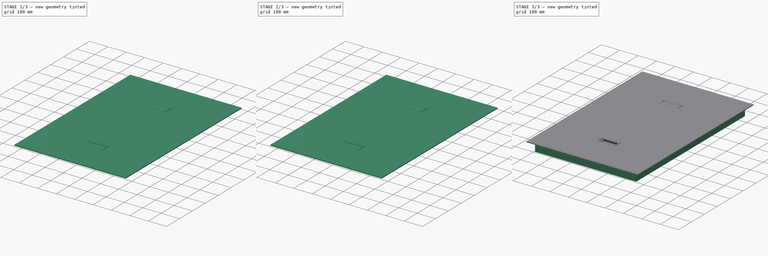
[diagram: build sequence overview — one tinted view per stage of 3, left to right]
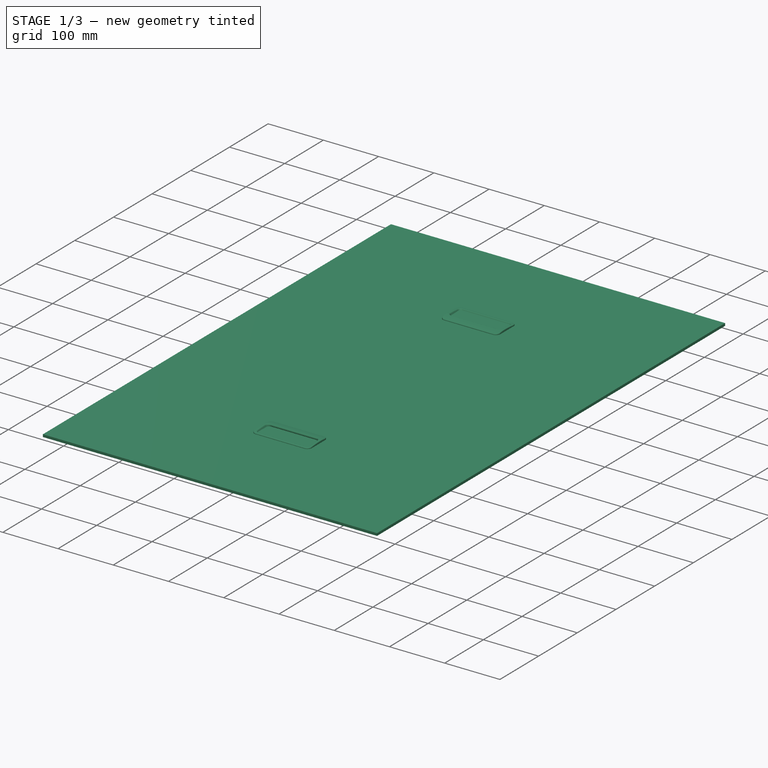
[diagram: stage 1 of 3 — iso view after this stage's code; geometry added in this stage tinted green]
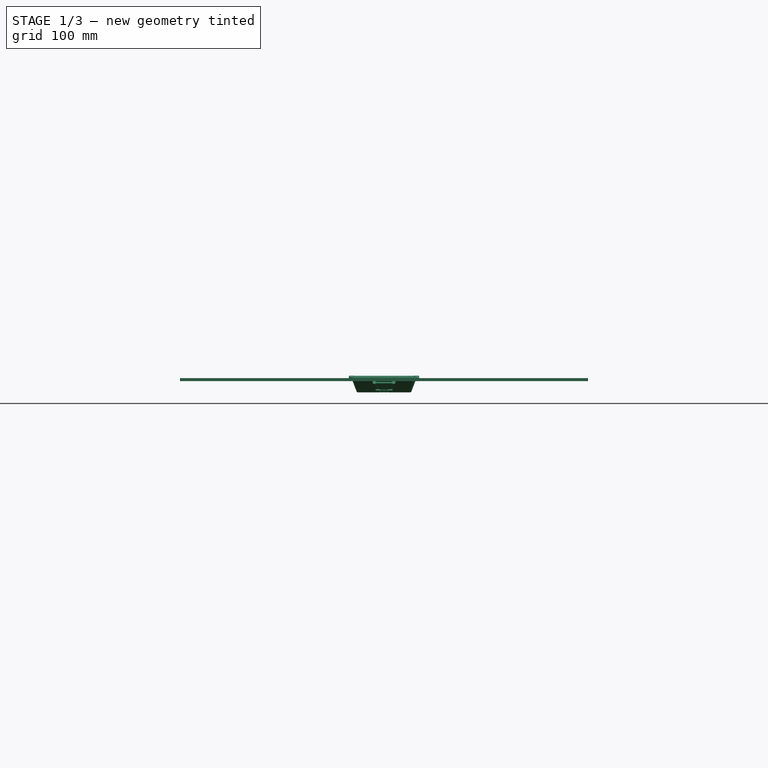
[diagram: stage 1 of 3 — front view after this stage's code; geometry added in this stage tinted green]
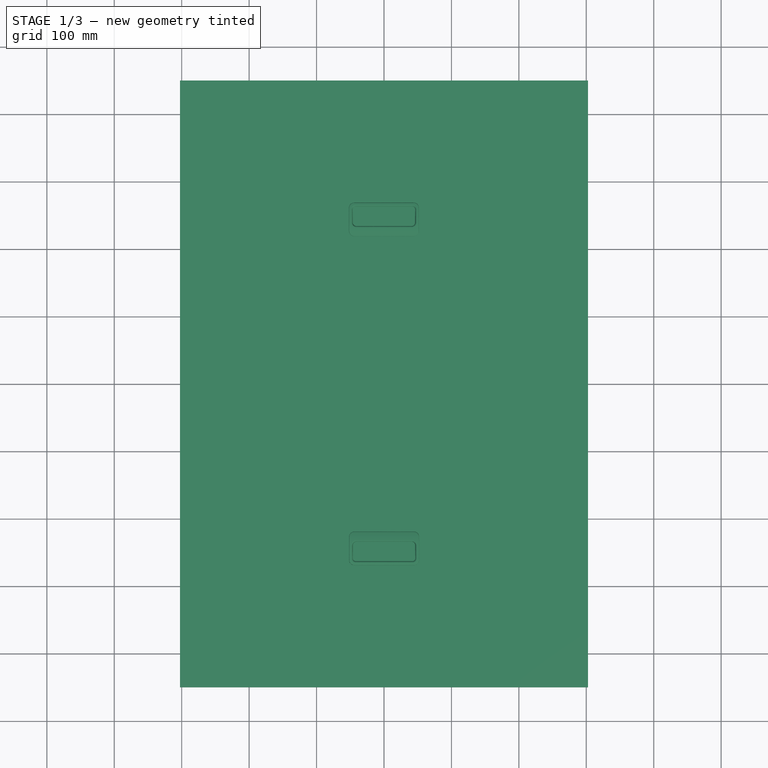
[diagram: stage 1 of 3 — top view after this stage's code; geometry added in this stage tinted green]
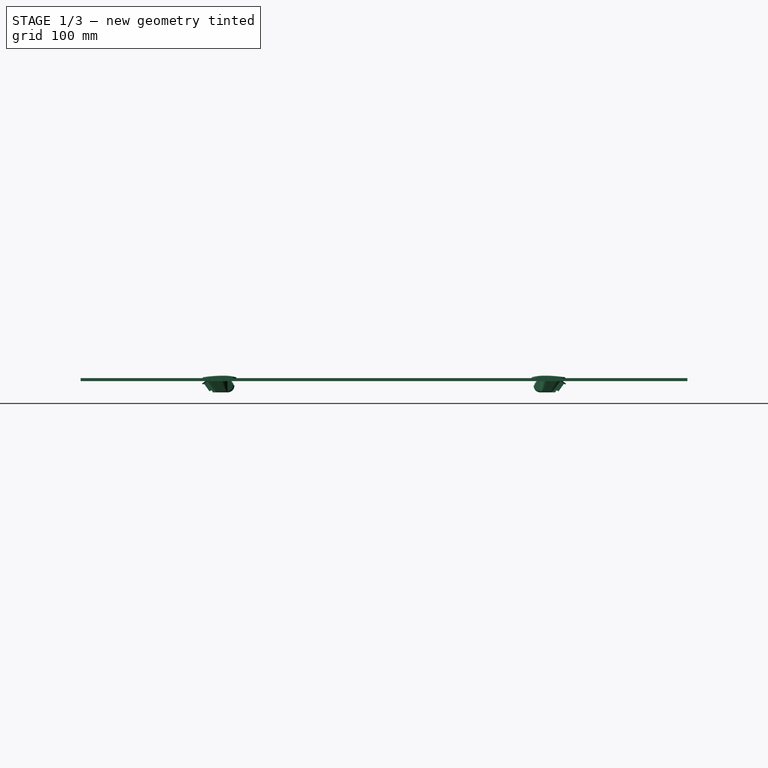
[diagram: stage 1 of 3 — right view after this stage's code; geometry added in this stage tinted green]
FCSTD DOCUMENT  (FreeCAD 1.0R39109 (Git))
Label: inspection cover
License: All rights reserved
LicenseURL: https://en.wikipedia.org/wiki/All_rights_reserved
objects: Sketcher::SketchObject×3, Part::FeaturePython×2, App::Part×2, Part::Extrusion×1, Part::Sweep×1, PartDesign::FeatureBase×1, PartDesign::Pocket×1, PartDesign::Body×1, Part::Feature×1
note: 16 computed .brp shape members not serialized (recipe doc carries the construction recipe); baked Part::Feature solids carry a one-line shape summary decoded from their .brp

FEATURE [Sketcher::SketchObject] Sketch
  ArcFitTolerance = 1e-06
  AttachmentSupport = -> [XY_Plane]
  FullyConstrained = true
  MakeInternals = false
  MapMode = 5
  sketch-geometry (5):
    g0: LineSegment StartX=-302.5 StartY=-450 StartZ=0 EndX=302.5 EndY=-450 EndZ=0
    g1: LineSegment StartX=302.5 StartY=-450 StartZ=0 EndX=302.5 EndY=450 EndZ=0
    g2: LineSegment StartX=302.5 StartY=450 StartZ=0 EndX=-302.5 EndY=450 EndZ=0
    g3: LineSegment StartX=-302.5 StartY=450 StartZ=0 EndX=-302.5 EndY=-450 EndZ=0
    g4: GeomPoint [constr] X=0 Y=0 Z=0
  constraints (12):
    c: Coincident(g0,g1)
    c: Coincident(g1,g2)
    c: Coincident(g2,g3)
    c: Coincident(g3,g0)
    c: Horizontal(g0)
    c: Horizontal(g2)
    c: Vertical(g1)
    c: Vertical(g3)
    c: Symmetric(g2,g0,g4)
    c: Coincident(g4,g-1)
    c: DistanceY(g3,g3) = 900
    c: DistanceX(g2,g2) = 605
FEATURE [Sketcher::SketchObject] Sketch001
  ArcFitTolerance = 1e-06
  AttachmentSupport = -> [XY_Plane]
  ExternalGeometry = -> [Sketch]
  FullyConstrained = true
  MakeInternals = false
  MapMode = 5
  sketch-geometry (5):
    g0: LineSegment StartX=-272.5 StartY=-420 StartZ=0 EndX=272.5 EndY=-420 EndZ=0
    g1: LineSegment StartX=272.5 StartY=-420 StartZ=0 EndX=272.5 EndY=420 EndZ=0
    g2: LineSegment StartX=272.5 StartY=420 StartZ=0 EndX=-272.5 EndY=420 EndZ=0
    g3: LineSegment StartX=-272.5 StartY=420 StartZ=0 EndX=-272.5 EndY=-420 EndZ=0
    g4: GeomPoint [constr] X=0 Y=0 Z=0
  constraints (12):
    c: Coincident(g0,g1)
    c: Coincident(g1,g2)
    c: Coincident(g2,g3)
    c: Coincident(g3,g0)
    c: Horizontal(g0)
    c: Horizontal(g2)
    c: Vertical(g1)
    c: Vertical(g3)
    c: Symmetric(g2,g0,g4)
    c: Coincident(g4,g-1)
    c: DistanceX(g1,g-3) = 30
    c: DistanceY(g1,g-3) = 30
FEATURE [Part::FeaturePython] AngleSteel  # WARN: FeaturePython — macro-defined, semantics opaque (R4)
  A = 50
  B = 50
  L = 5500
  Placement = pos=(275,0,3.74e-14) rot=(0,1,0;3.14159rad)
  Solid = false
  g0 = 7.85
  mass = 0
  size = 6
  standard = SS_Equal
  t = 4
  type = 00_Angle
FEATURE [Part::Extrusion] Extrude
  Base = -> Sketch
  Dir = (0,0,1)
  DirMode = 2
  FaceMakerClass = Part::FaceMakerBullseye
  FaceMakerMode = 3
  LengthFwd = 4.5
  LengthRev = 0
  Solid = true
  Symmetric = false
FEATURE [PartDesign::Body] Body
  AllowCompound = false
  BaseFeature = -> Extrude
  Group = -> [BaseFeature,Sketch002,Pocket]
  Origin = -> Origin
  Tip = -> Pocket
FEATURE [Part::Feature] Part__Feature  label="AP-268-2\X\96{\X\91\X\CC__\X\C3\X\DE\X\CC\X\AB\X\D9\X\\\\C005"
  Placement = pos=(1044.74,-585.443,742.289) rot=(0,0,1;0rad)
  shape: bbox 104.7 x 52.9 x 35.45 mm, 341 faces (baked)
FEATURE [App::Part] AP_268_2_black_v004  label="AP-268-2-black v004"
  Group = -> [Part__Feature]
  Origin = -> Origin002
  Placement = pos=(-154,-42.5,-734) rot=(0,0,1;0rad)
FEATURE [Part::FeaturePython] Array  # Draft array (typed FeaturePython)
  AlwaysSyncPlacement = false
  Angle = 360
  ArrayType = 1
  Axis = (0,0,1)
  Base = -> AP_268_2_black_v004
  Center = (0,0,0)
  Count = 2
  ExpandArray = false
  Fuse = false
  IntervalAxis = (0,0,0)
  IntervalX = (50,0,0)
  IntervalY = (0,50,0)
  IntervalZ = (0,0,50)
  NumberCircles = 3
  NumberPolar = 2
  NumberX = 2
  NumberY = 2
  NumberZ = 1
  PlacementList = 2 placements: [(-154,-42.5,-734),(154,42.5,-734)]
  RadialDistance = 50
  ScaleList = (2) [(1,1,1),(1,1,1)]
  Symmetry = 1
  TangentialDistance = 25
FEATURE [App::Part] Part  label="inspectionCover"
  Group = -> [Sketch,Sketch001,Sweep,AngleSteel,Extrude,Body,AP_268_2_black_v004,Array]
  Origin = -> Origin001
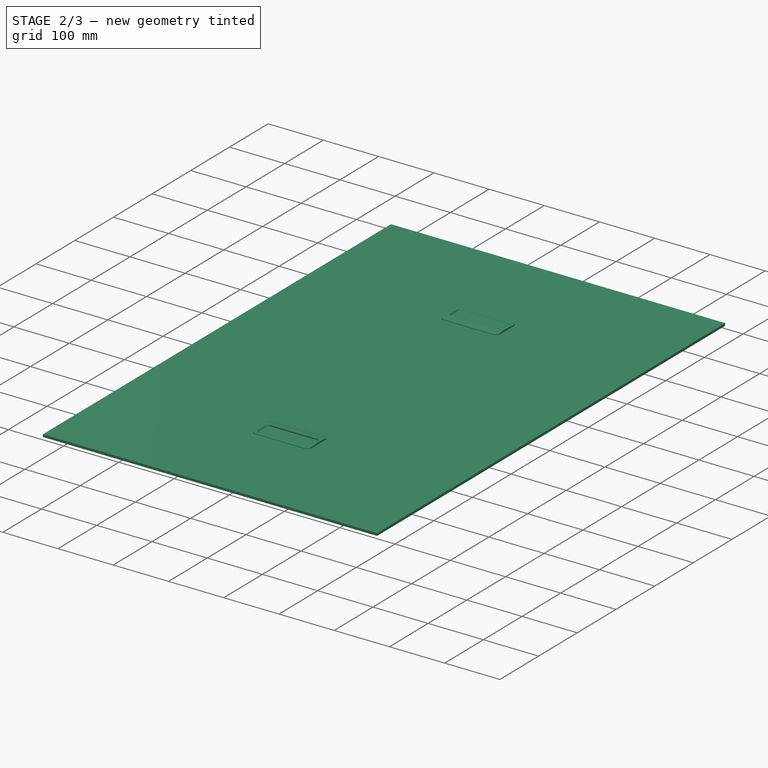
[diagram: stage 2 of 3 — iso view after this stage's code; geometry added in this stage tinted green]
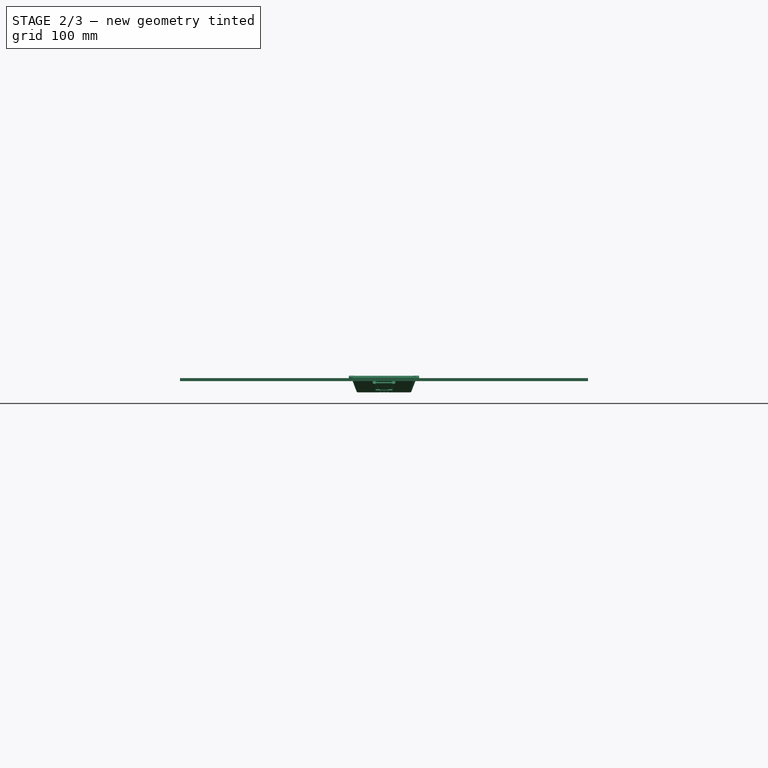
[diagram: stage 2 of 3 — front view after this stage's code; geometry added in this stage tinted green]
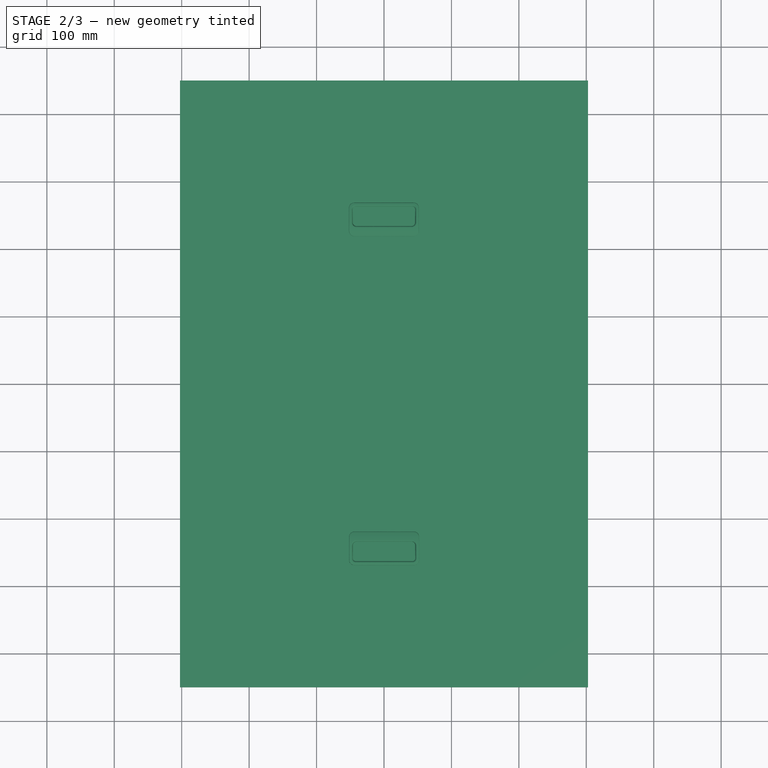
[diagram: stage 2 of 3 — top view after this stage's code; geometry added in this stage tinted green]
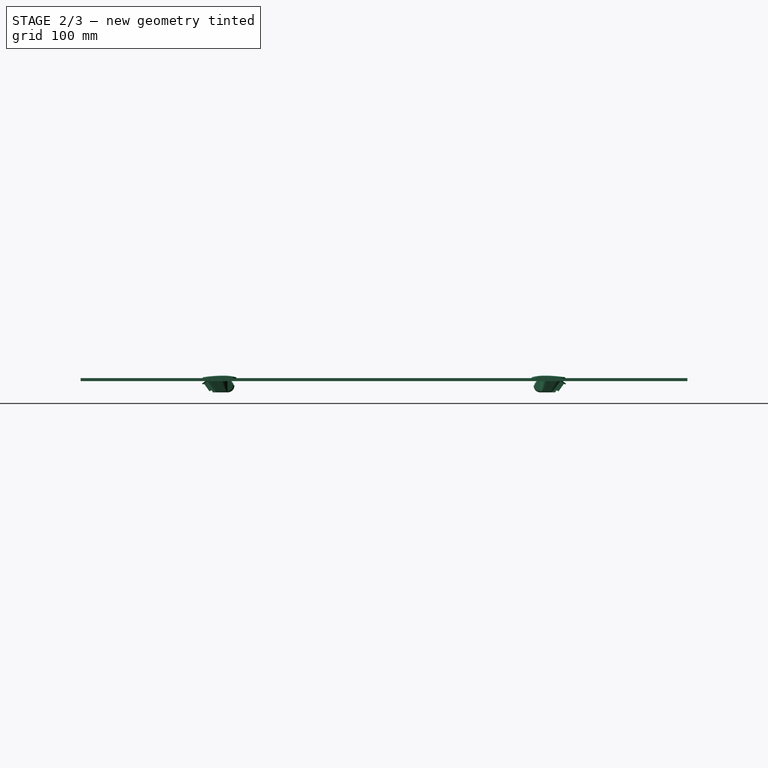
[diagram: stage 2 of 3 — right view after this stage's code; geometry added in this stage tinted green]
FEATURE [PartDesign::FeatureBase] BaseFeature
  BaseFeature = -> Extrude
  Suppressed = false
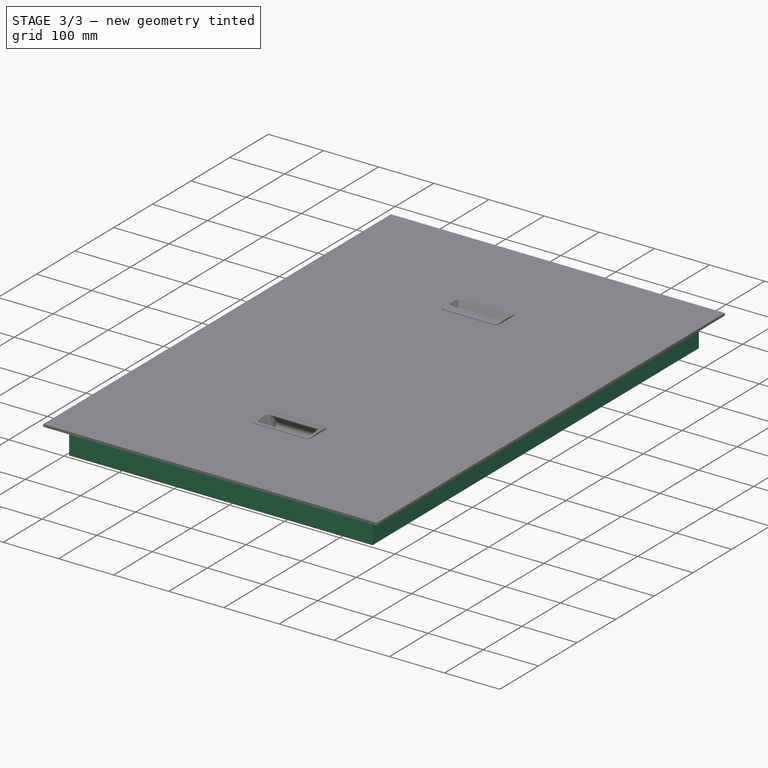
[diagram: stage 3 of 3 — iso view after this stage's code; geometry added in this stage tinted green]
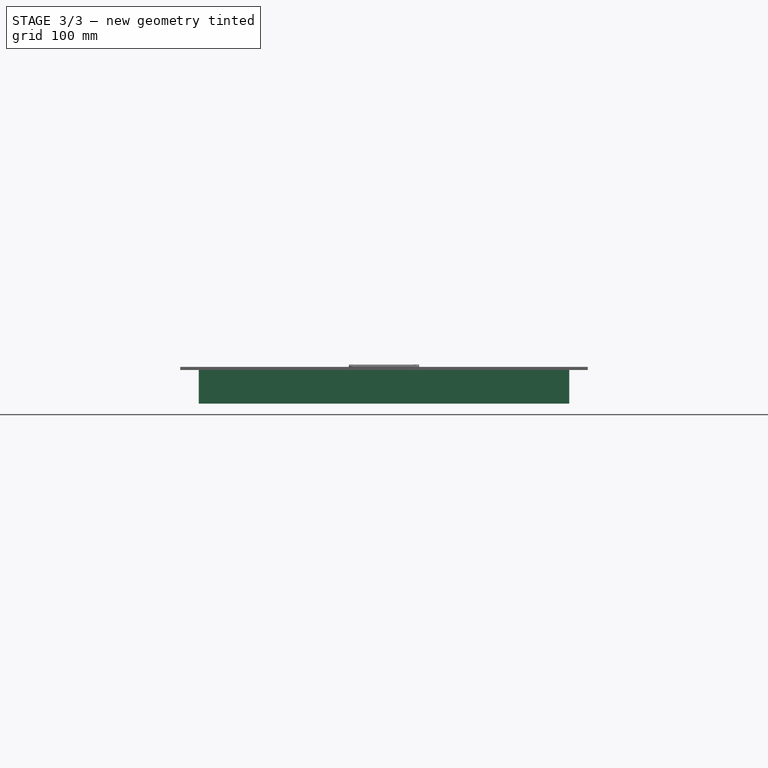
[diagram: stage 3 of 3 — front view after this stage's code; geometry added in this stage tinted green]
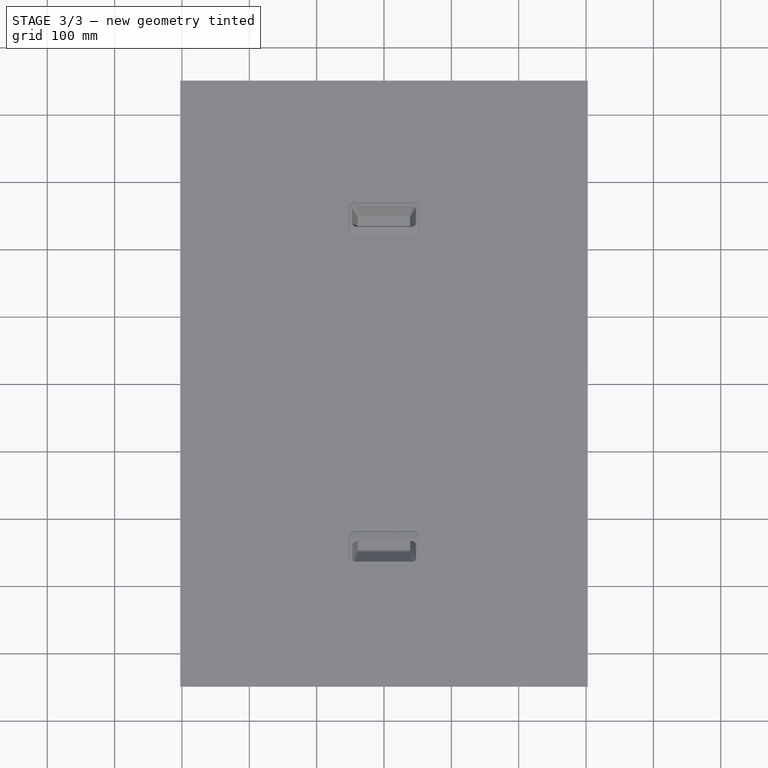
[diagram: stage 3 of 3 — top view after this stage's code; geometry added in this stage tinted green]
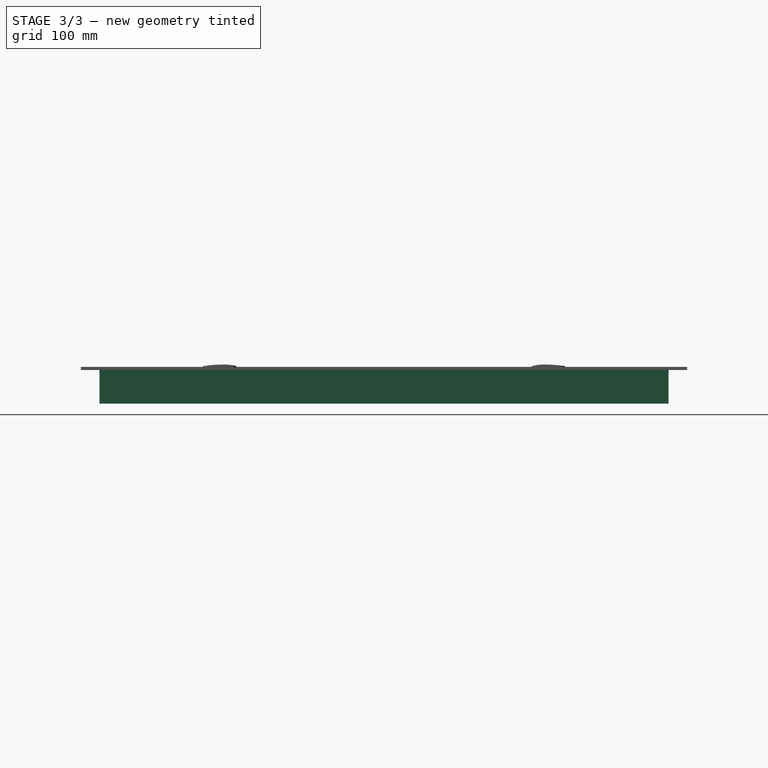
[diagram: stage 3 of 3 — right view after this stage's code; geometry added in this stage tinted green]
FEATURE [Part::Sweep] Sweep
  Frenet = true
  Sections = -> [AngleSteel]
  Solid = true
  Spine = -> Sketch001 [Edge2,Edge3,Edge4,Edge1]
  Transition = 1
FEATURE [Sketcher::SketchObject] Sketch002
  ArcFitTolerance = 1e-06
  AttachmentSupport = -> [BaseFeature]
  FullyConstrained = true
  MakeInternals = false
  MapMode = 5
  Placement = pos=(0,0,4.5) rot=(0,0,1;0rad)
  sketch-geometry (8):
    g0: LineSegment StartX=-48.25 StartY=225 StartZ=0 EndX=48.25 EndY=225 EndZ=0
    g1: LineSegment StartX=48.25 StartY=225 StartZ=0 EndX=48.25 EndY=265 EndZ=0
    g2: LineSegment StartX=48.25 StartY=265 StartZ=0 EndX=-48.25 EndY=265 EndZ=0
    g3: LineSegment StartX=-48.25 StartY=265 StartZ=0 EndX=-48.25 EndY=225 EndZ=0
    g4: LineSegment StartX=-48.25 StartY=-265 StartZ=0 EndX=48.25 EndY=-265 EndZ=0
    g5: LineSegment StartX=48.25 StartY=-265 StartZ=0 EndX=48.25 EndY=-225 EndZ=0
    g6: LineSegment StartX=48.25 StartY=-225 StartZ=0 EndX=-48.25 EndY=-225 EndZ=0
    g7: LineSegment StartX=-48.25 StartY=-225 StartZ=0 EndX=-48.25 EndY=-265 EndZ=0
  constraints (23):
    c: Coincident(g0,g1)
    c: Coincident(g1,g2)
    c: Coincident(g2,g3)
    c: Coincident(g3,g0)
    c: Horizontal(g2)
    c: Vertical(g1)
    c: Vertical(g3)
    c: Coincident(g4,g5)
    c: Coincident(g5,g6)
    c: Coincident(g6,g7)
    c: Coincident(g7,g4)
    c: Horizontal(g4)
    c: Horizontal(g6)
    c: Vertical(g5)
    c: Vertical(g7)
    c: DistanceX(g2,g2) = 96.5
    c: DistanceY(g1,g1) = 40
    c: Vertical(g0,g6)
    c: Vertical(g0,g5)
    c: Symmetric(g0,g0,g-2)
    c: DistanceY(g-1,g0) = 225
    c: DistanceY(g5,g5) = 40
    c: DistanceY(g5,g-1) = 225
FEATURE [PartDesign::Pocket] Pocket
  BaseFeature = -> BaseFeature
  Direction = (0,0,-1)
  Length = 5
  Length2 = 5
  Profile = -> Sketch002
  ReferenceAxis = -> Sketch002 [N_Axis]
  Suppressed = false
  Type = 0
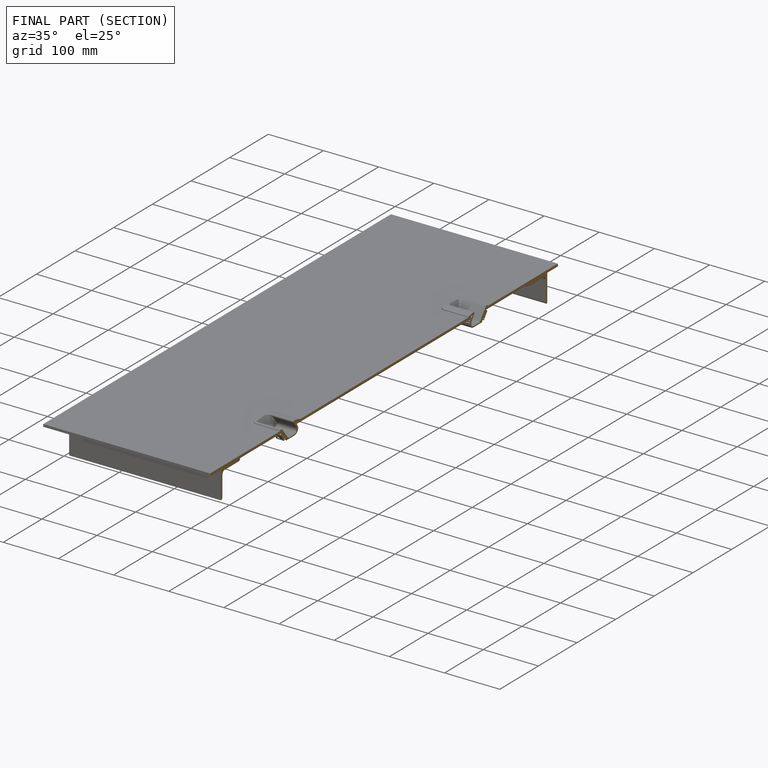
[diagram: finished part — half-section view (interior)]
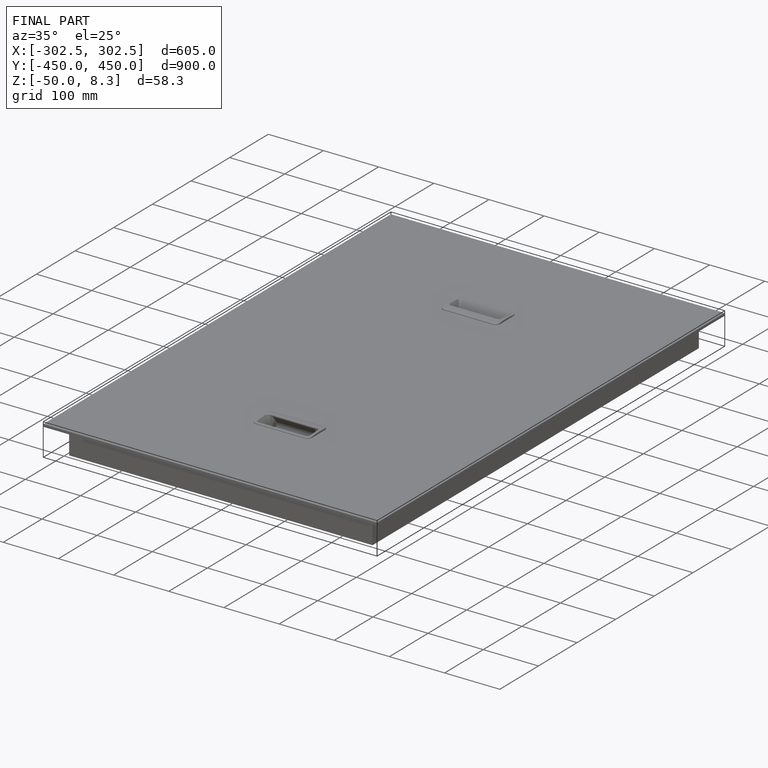
[diagram: finished part — iso view with bounding-box wireframe]
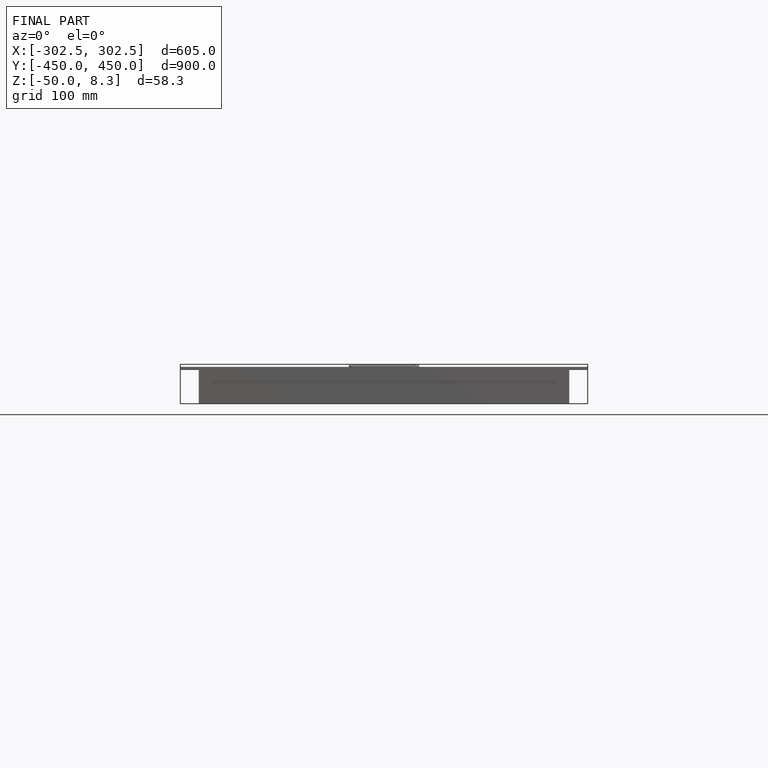
[diagram: finished part — front view with bounding-box wireframe]
